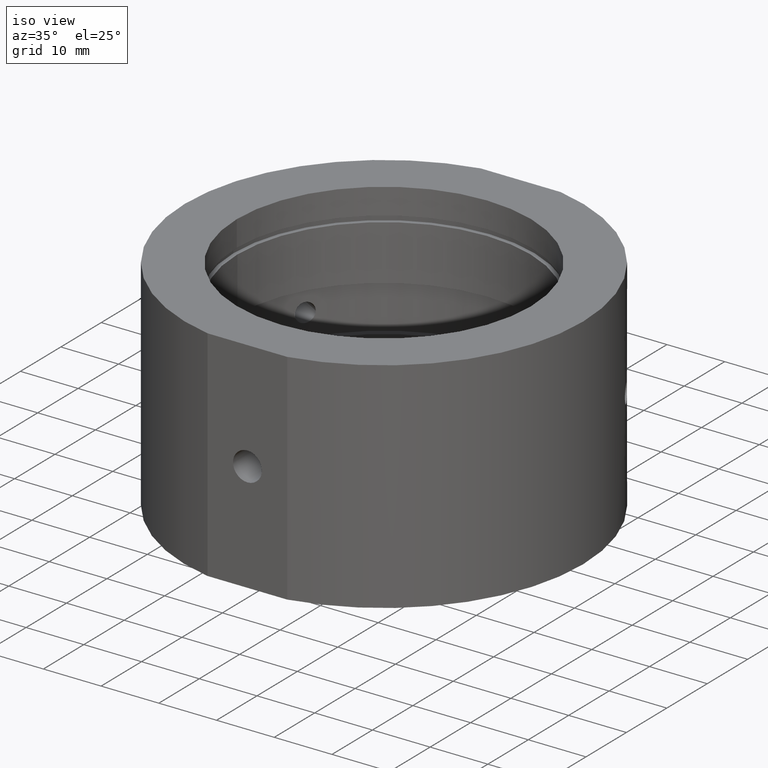
[diagram: clean part render]
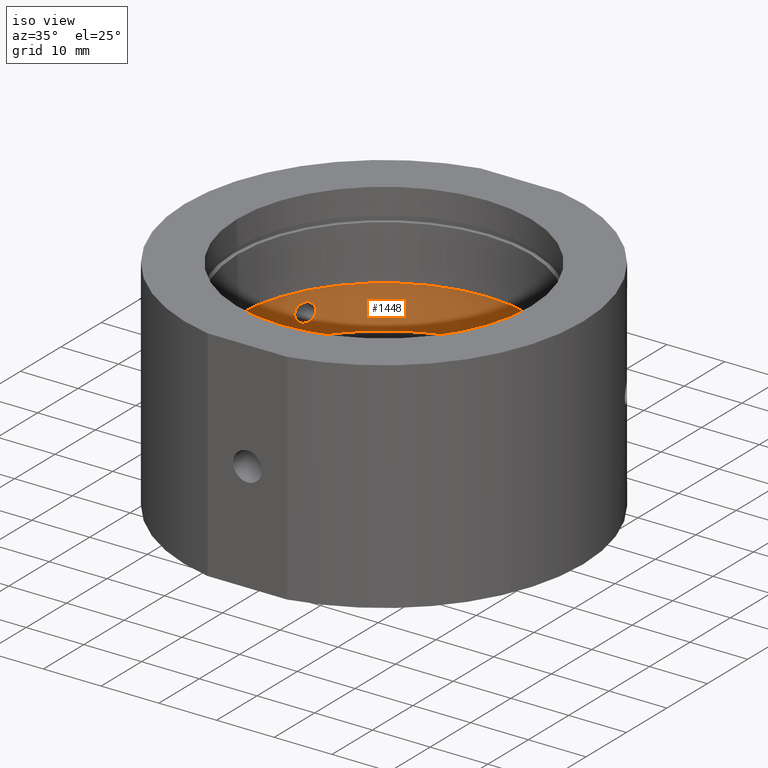
[diagram: same view with one face highlighted and labeled with its STEP entity id]
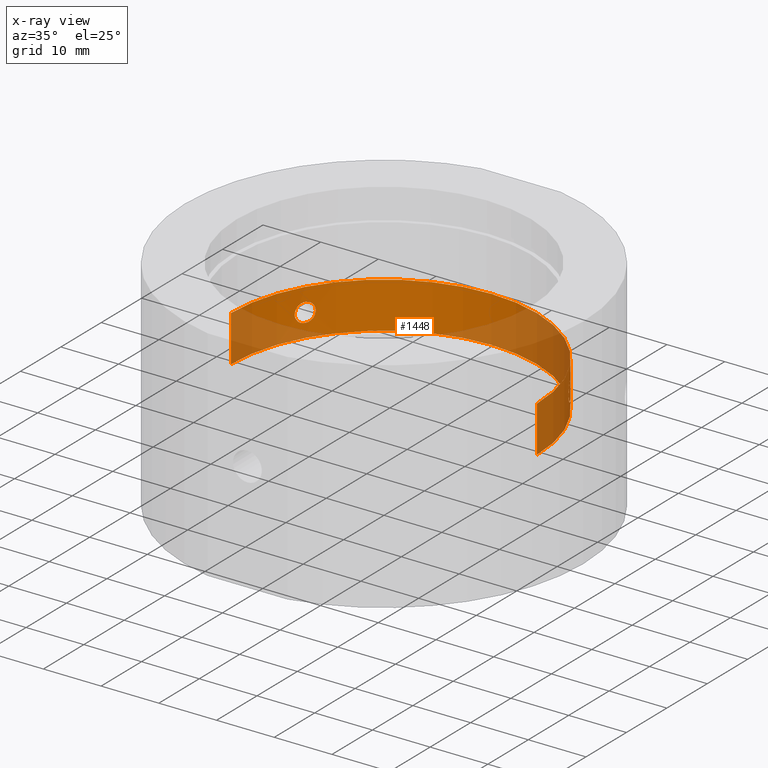
[diagram: x-ray of the same camera — body ghosted, the highlighted face saturated]
A machine part, iso view. The second image highlights one B-rep face of the part: STEP entity #1448.
The next image is the same camera in x-ray: the body ghosted, the highlighted face saturated — about 42% of this face is hidden behind the body in this view.
In plain terms, the highlighted cylindrical surface (partial cylindrical patch) has radius 26.5 mm, axis along (-0, -0, -1).
Its self-contained STEP definition (entity closure, byte-faithful):
#28 = CARTESIAN_POINT ( 'NONE',  ( -23.35139841118316500, 12.52877642802922200, -1.432732415614113200 ) ) ;
#34 = CARTESIAN_POINT ( 'NONE',  ( -23.16259475326376500, 12.87572309743568900, -1.607467900283008300 ) ) ;
#47 = CARTESIAN_POINT ( 'NONE',  ( -23.54583594359533500, 12.15933445046124300, 1.090854881088376900 ) ) ;
#55 = CARTESIAN_POINT ( 'NONE',  ( 23.47606128565331600, 12.29350779586357900, -1.242017584850813900 ) ) ;
#56 = CARTESIAN_POINT ( 'NONE',  ( -22.73283772159888400, 13.61907814751506200, 1.597159061045216900 ) ) ;
#62 = CARTESIAN_POINT ( 'NONE',  ( 23.05775346456262300, 13.06143664693666500, -1.639154046853646500 ) ) ;
#63 = CARTESIAN_POINT ( 'NONE',  ( -22.08014407289325100, 14.65323301255653900, 0.1077006230227178100 ) ) ;
#69 = DIRECTION ( 'NONE',  ( -1.000000000000000000, 0.0000000000000000000, 1.309225264888156600E-016 ) ) ;
#73 = CARTESIAN_POINT ( 'NONE',  ( 23.63696044207667100, 11.98127196628827700, -0.8295684704815773400 ) ) ;
#75 = VECTOR ( 'NONE', #269, 1000.000000000000000 ) ;
#91 = CYLINDRICAL_SURFACE ( 'NONE', #1072, 26.49999999999999300 ) ;
#143 = CARTESIAN_POINT ( 'NONE',  ( -22.26181086660921700, 14.37654084257253500, -1.013694917575982800 ) ) ;
#158 = CARTESIAN_POINT ( 'NONE',  ( 23.47508895288158100, 12.29537088971568600, 1.243978991921617300 ) ) ;
#165 = CARTESIAN_POINT ( 'NONE',  ( 23.35227968779728200, 12.52713189965998800, 1.431639342594719600 ) ) ;
#172 = CARTESIAN_POINT ( 'NONE',  ( -23.05761192653950100, 13.06303504127114200, 1.649922903012480700 ) ) ;
#176 = CIRCLE ( 'NONE', #1014, 26.49999999999999300 ) ;
#182 = CARTESIAN_POINT ( 'NONE',  ( 23.73014407289325700, 11.79534918006791400, 2.020667172427145400E-016 ) ) ;
#190 = ORIENTED_EDGE ( 'NONE', *, *, #805, .T. ) ;
#202 = B_SPLINE_CURVE_WITH_KNOTS ( 'NONE', 3,
 ( #948, #1168, #1174, #1284, #750, #953, #1160, #402, #736, #1064, #731, #398, #278, #836, #519, #1189, #289, #409, #165, #1278, #158, #1180, #1068, #1051, #623, #530, #942, #1046, #527, #182 ),
 .UNSPECIFIED., .F., .F.,
 ( 4, 2, 2, 2, 2, 2, 2, 2, 2, 2, 2, 2, 2, 2, 4 ),
 ( 3.873116959777175400E-019, 0.0003224937488851738500, 0.0006449874977703473700, 0.0009674812466555208400, 0.001289974995540694300, 0.001934962493311033700, 0.002579949991081373400, 0.002902443739966543500, 0.003224937488851713200, 0.003547431237736883300, 0.003869924986622053000, 0.004192418735507222700, 0.004514912484392392800, 0.004837406233277562900, 0.005159899982162733000 ),
 .UNSPECIFIED. ) ;
#210 = EDGE_CURVE ( 'NONE', #1439, #1283, #202, .T. ) ;
#214 = B_SPLINE_CURVE_WITH_KNOTS ( 'NONE', 3,
 ( #906, #244, #1272, #616, #143, #828, #725, #712, #914, #705, #1381, #718, #364, #250, #34, #1385, #28, #806, #604, #1370, #1133, #1154, #371, #273 ),
 .UNSPECIFIED., .F., .F.,
 ( 4, 2, 2, 2, 2, 2, 2, 2, 2, 2, 2, 4 ),
 ( 0.005159899982162735600, 0.005804739698417773900, 0.006449579414672812100, 0.006771999272800330000, 0.007094419130927846900, 0.007416838989055364800, 0.007739258847182881700, 0.008384098563437907000, 0.008706518421565424800, 0.009028938279692940900, 0.009673777995947974900, 0.01031861771220300900 ),
 .UNSPECIFIED. ) ;
#244 = CARTESIAN_POINT ( 'NONE',  ( -22.08014407289324800, 14.65323301255653400, -0.2153518926507573000 ) ) ;
#245 = CARTESIAN_POINT ( 'NONE',  ( -22.08014407289324800, 14.65323301255653400, 2.020667172435034000E-016 ) ) ;
#250 = CARTESIAN_POINT ( 'NONE',  ( -23.05787869208662500, 13.06260460685934200, -1.650176797725128700 ) ) ;
#269 = DIRECTION ( 'NONE',  ( -1.224646799147350500E-016, -0.0000000000000000000, -1.000000000000000000 ) ) ;
#273 = CARTESIAN_POINT ( 'NONE',  ( -23.73014407289325300, 11.79534918006790400, -1.135975920624923700E-017 ) ) ;
#278 = CARTESIAN_POINT ( 'NONE',  ( 22.84172615953674100, 13.43696015835090300, 1.649922903012480000 ) ) ;
#279 = CARTESIAN_POINT ( 'NONE',  ( -23.65513358560170700, 11.94514029280052500, 0.7318373474446678900 ) ) ;
#283 = EDGE_CURVE ( 'NONE', #970, #563, #176, .T. ) ;
#289 = CARTESIAN_POINT ( 'NONE',  ( 23.21069027907539700, 12.78764415457972700, 1.565986155163603600 ) ) ;
#292 = CARTESIAN_POINT ( 'NONE',  ( -23.70662996333397400, 11.84255618835795900, 0.4272032370747663200 ) ) ;
#302 = DIRECTION ( 'NONE',  ( -1.224646799147350500E-016, -0.0000000000000000000, -1.000000000000000000 ) ) ;
#328 = LINE ( 'NONE', #1268, #75 ) ;
#345 = EDGE_CURVE ( 'NONE', #659, #563, #869, .T. ) ;
#364 = CARTESIAN_POINT ( 'NONE',  ( -22.89456247127683900, 13.34544347229918800, -1.649910780175099400 ) ) ;
#371 = CARTESIAN_POINT ( 'NONE',  ( -23.73014407289326000, 11.79534918006790500, -0.2180454663069551200 ) ) ;
#386 = CARTESIAN_POINT ( 'NONE',  ( 22.26251392646611300, 14.37545578161552700, -1.015413393939633500 ) ) ;
#392 = CARTESIAN_POINT ( 'NONE',  ( 23.73014407289325700, 11.79534918006791400, 2.020667172427145400E-016 ) ) ;
#394 = CARTESIAN_POINT ( 'NONE',  ( -22.67976983195918800, 13.70722534376215800, 1.565986155163604100 ) ) ;
#397 = CARTESIAN_POINT ( 'NONE',  ( -26.49999999999998900, 0.0000000000000000000, -3.999999999999996400 ) ) ;
#398 = CARTESIAN_POINT ( 'NONE',  ( 22.73071288378095600, 13.62366110087663700, 1.606592446830117600 ) ) ;
#400 = CARTESIAN_POINT ( 'NONE',  ( -23.73014407289326400, 11.79534918006790900, 0.1090477185014678100 ) ) ;
#402 = CARTESIAN_POINT ( 'NONE',  ( 22.26541622400003500, 14.37027612070883500, 1.005959331714499700 ) ) ;
#403 = CARTESIAN_POINT ( 'NONE',  ( -23.57773229193065100, 12.09727801546402600, 1.005959331714501000 ) ) ;
#409 = CARTESIAN_POINT ( 'NONE',  ( 23.30647296158392500, 12.61222836560926900, 1.483316624237936800 ) ) ;
#410 = EDGE_CURVE ( 'NONE', #1433, #1310, #214, .T. ) ;
#411 = CARTESIAN_POINT ( 'NONE',  ( 22.43092357441076200, 14.11069502683310600, -1.313227890595692700 ) ) ;
#425 = CARTESIAN_POINT ( 'NONE',  ( 26.49999999999999300, 3.245314017740485000E-015, -31.93906810035839800 ) ) ;
#426 = B_SPLINE_CURVE_WITH_KNOTS ( 'NONE', 3,
 ( #625, #1169, #726, #73, #1389, #55, #928, #1286, #854, #738, #1059, #62, #617, #522, #745, #636, #851, #411, #1183, #386, #647, #1306, #1069, #758 ),
 .UNSPECIFIED., .F., .F.,
 ( 4, 2, 2, 2, 2, 2, 2, 2, 2, 2, 2, 4 ),
 ( 0.005159899982162733000, 0.005804739698417770400, 0.006449579414672806900, 0.006771999272800326500, 0.007094419130927845200, 0.007416838989055363900, 0.007739258847182882600, 0.008384098563437910500, 0.008706518421565424800, 0.009028938279692939200, 0.009673777995947971400, 0.01031861771220300400 ),
 .UNSPECIFIED. ) ;
#438 = ORIENTED_EDGE ( 'NONE', *, *, #1327, .T. ) ;
#450 = CARTESIAN_POINT ( 'NONE',  ( 26.49999999999999600, 3.245314017740485000E-015, 3.999999999999993300 ) ) ;
#468 = DIRECTION ( 'NONE',  ( -1.000000000000000000, 0.0000000000000000000, 0.0000000000000000000 ) ) ;
#482 = ORIENTED_EDGE ( 'NONE', *, *, #949, .F. ) ;
#503 = CARTESIAN_POINT ( 'NONE',  ( -23.69242317840550900, 11.87100692876142600, 0.5320135984829578200 ) ) ;
#507 = CARTESIAN_POINT ( 'NONE',  ( -22.52495430556247100, 13.96010149608200600, 1.431639342594719800 ) ) ;
#514 = CARTESIAN_POINT ( 'NONE',  ( -22.10946025722504500, 14.60897716588689500, 0.4285652912980805200 ) ) ;
#515 = ORIENTED_EDGE ( 'NONE', *, *, #210, .T. ) ;
#519 = CARTESIAN_POINT ( 'NONE',  ( 23.05729099181073500, 13.06225602963113800, 1.639302869596791700 ) ) ;
#522 = CARTESIAN_POINT ( 'NONE',  ( 22.84148677517501700, 13.43740640129746700, -1.650176797725129400 ) ) ;
#523 = CARTESIAN_POINT ( 'NONE',  ( -22.12669488235694400, 14.58290416261393900, 0.5314342899608207600 ) ) ;
#527 = CARTESIAN_POINT ( 'NONE',  ( 23.73014407289325000, 11.79534918006791200, 0.1077006230227172100 ) ) ;
#530 = CARTESIAN_POINT ( 'NONE',  ( 23.69251290695586900, 11.87082778860150400, 0.5314342899608194300 ) ) ;
#543 = CARTESIAN_POINT ( 'NONE',  ( 3.421549032026375300E-015, 0.0000000000000000000, -4.000000000000000000 ) ) ;
#563 = VERTEX_POINT ( 'NONE', #996 ) ;
#584 = CARTESIAN_POINT ( 'NONE',  ( 0.0000000000000000000, 0.0000000000000000000, -31.93906810035839800 ) ) ;
#604 = CARTESIAN_POINT ( 'NONE',  ( -23.47522069572985600, 12.29511395232253800, -1.243615211085981500 ) ) ;
#616 = CARTESIAN_POINT ( 'NONE',  ( -22.19456611349417200, 14.47957222794231500, -0.8295684704815775600 ) ) ;
#617 = CARTESIAN_POINT ( 'NONE',  ( 23.00477430741860400, 13.15455097250620000, -1.649910780175099000 ) ) ;
#619 = CARTESIAN_POINT ( 'NONE',  ( -22.26566509040219400, 14.36988995336608900, 1.006520465042879200 ) ) ;
#623 = CARTESIAN_POINT ( 'NONE',  ( 23.65523837441242000, 11.94493271988714200, 0.7313737833723542600 ) ) ;
#625 = CARTESIAN_POINT ( 'NONE',  ( 23.73014407289325700, 11.79534918006791400, 2.020667172427145400E-016 ) ) ;
#630 = DIRECTION ( 'NONE',  ( -1.224646799147350500E-016, -0.0000000000000000000, -1.000000000000000000 ) ) ;
#633 = EDGE_LOOP ( 'NONE', ( #771, #482, #804, #1058 ) ) ;
#636 = CARTESIAN_POINT ( 'NONE',  ( 22.57578034668964800, 13.87782951273221400, -1.483357019583652700 ) ) ;
#637 = CARTESIAN_POINT ( 'NONE',  ( 4.401266471344255700E-015, 0.0000000000000000000, 3.999999999999996400 ) ) ;
#647 = CARTESIAN_POINT ( 'NONE',  ( 22.19519541159433700, 14.47860913136916000, -0.8315601166443732400 ) ) ;
#659 = VERTEX_POINT ( 'NONE', #450 ) ;
#667 = EDGE_CURVE ( 'NONE', #685, #970, #328, .T. ) ;
#668 = B_SPLINE_CURVE_WITH_KNOTS ( 'NONE', 3,
 ( #937, #400, #728, #292, #503, #279, #1049, #403, #47, #1055, #1273, #1170, #172, #834, #1397, #56, #394, #1390, #507, #847, #1178, #951, #619, #1158, #1163, #523, #514, #839, #63, #945 ),
 .UNSPECIFIED., .F., .F.,
 ( 4, 2, 2, 2, 2, 2, 2, 2, 2, 2, 2, 2, 2, 2, 4 ),
 ( 2.452218381647094000E-019, 0.0003224937488851720600, 0.0006449874977703437900, 0.0009674812466555154200, 0.001289974995540687400, 0.001934962493311031500, 0.002579949991081375600, 0.002902443739966545700, 0.003224937488851715800, 0.003547431237736885900, 0.003869924986622055600, 0.004192418735507225300, 0.004514912484392395400, 0.004837406233277565500, 0.005159899982162735600 ),
 .UNSPECIFIED. ) ;
#677 = AXIS2_PLACEMENT_3D ( 'NONE', #637, #630, #69 ) ;
#685 = VERTEX_POINT ( 'NONE', #903 ) ;
#695 = CARTESIAN_POINT ( 'NONE',  ( 22.08014407289325100, 14.65323301255654400, 2.396326153925488600E-016 ) ) ;
#705 = CARTESIAN_POINT ( 'NONE',  ( -22.67861960326777300, 13.70912737176482400, -1.565225519695951300 ) ) ;
#712 = CARTESIAN_POINT ( 'NONE',  ( -22.52491568547260300, 13.96016563751796200, -1.431623242074242100 ) ) ;
#718 = CARTESIAN_POINT ( 'NONE',  ( -22.84041267844937200, 13.43788193104175500, -1.639154046853646500 ) ) ;
#725 = CARTESIAN_POINT ( 'NONE',  ( -22.42986220867273400, 14.11238224271655800, -1.311712561979966100 ) ) ;
#726 = CARTESIAN_POINT ( 'NONE',  ( 23.71094271443393700, 11.83418659914126500, -0.4324246359971258800 ) ) ;
#728 = CARTESIAN_POINT ( 'NONE',  ( -23.72537572262025000, 11.80495608265281100, 0.2162676873792895900 ) ) ;
#731 = CARTESIAN_POINT ( 'NONE',  ( 22.52394914348536000, 13.96284945768985600, 1.442030783619155700 ) ) ;
#736 = CARTESIAN_POINT ( 'NONE',  ( 22.30321049900827600, 14.31162485526390200, 1.090854881088376900 ) ) ;
#738 = CARTESIAN_POINT ( 'NONE',  ( 23.21176236929870400, 12.78569701331146300, -1.565225519695951700 ) ) ;
#745 = CARTESIAN_POINT ( 'NONE',  ( 22.73200067110512600, 13.62153392517294600, -1.607467900283009000 ) ) ;
#750 = CARTESIAN_POINT ( 'NONE',  ( 22.12680515801110200, 14.58273688532992700, 0.5320135984829578200 ) ) ;
#758 = CARTESIAN_POINT ( 'NONE',  ( 22.08014407289325100, 14.65323301255654400, 2.396326153925488600E-016 ) ) ;
#763 = DIRECTION ( 'NONE',  ( -1.224646799147350500E-016, -0.0000000000000000000, -1.000000000000000000 ) ) ;
#771 = ORIENTED_EDGE ( 'NONE', *, *, #345, .F. ) ;
#804 = ORIENTED_EDGE ( 'NONE', *, *, #667, .T. ) ;
#805 = EDGE_CURVE ( 'NONE', #1310, #1433, #668, .T. ) ;
#806 = CARTESIAN_POINT ( 'NONE',  ( -23.43568214549745900, 12.37040213237062300, -1.313227890595690900 ) ) ;
#828 = CARTESIAN_POINT ( 'NONE',  ( -22.38452069566641000, 14.18411155624455600, -1.242017584850814800 ) ) ;
#834 = CARTESIAN_POINT ( 'NONE',  ( -22.89614636858032500, 13.34271597275603800, 1.650038390237899400 ) ) ;
#836 = CARTESIAN_POINT ( 'NONE',  ( 23.00320417217716700, 13.15728641757958600, 1.650038390237900100 ) ) ;
#839 = CARTESIAN_POINT ( 'NONE',  ( -22.08612916099174200, 14.64422566690396000, 0.2170867892633909200 ) ) ;
#847 = CARTESIAN_POINT ( 'NONE',  ( -22.43020451450802400, 14.11183636830914200, 1.312176871509158200 ) ) ;
#851 = CARTESIAN_POINT ( 'NONE',  ( 22.52593787060042300, 13.95851602396180300, -1.432732415614114600 ) ) ;
#854 = CARTESIAN_POINT ( 'NONE',  ( 23.30740716125861300, 12.61050085541030300, -1.482342151618422800 ) ) ;
#861 = FACE_BOUND ( 'NONE', #1221, .T. ) ;
#869 = LINE ( 'NONE', #425, #1141 ) ;
#903 = CARTESIAN_POINT ( 'NONE',  ( -26.49999999999998900, 0.0000000000000000000, 4.000000000000000000 ) ) ;
#906 = CARTESIAN_POINT ( 'NONE',  ( -22.08014407289324800, 14.65323301255653400, 2.020667172435034000E-016 ) ) ;
#914 = CARTESIAN_POINT ( 'NONE',  ( -22.57471767585989000, 13.87955627029236200, -1.482342151618423200 ) ) ;
#928 = CARTESIAN_POINT ( 'NONE',  ( 23.43661263444521100, 12.36863935473706600, -1.311712561979966100 ) ) ;
#937 = CARTESIAN_POINT ( 'NONE',  ( -23.73014407289325300, 11.79534918006790400, -1.135975920624923700E-017 ) ) ;
#942 = CARTESIAN_POINT ( 'NONE',  ( 23.70647547757725300, 11.84286566377609700, 0.4285652912980805200 ) ) ;
#945 = CARTESIAN_POINT ( 'NONE',  ( -22.08014407289324800, 14.65323301255653400, 2.020667172435034000E-016 ) ) ;
#948 = CARTESIAN_POINT ( 'NONE',  ( 22.08014407289325100, 14.65323301255654400, 2.396326153925488600E-016 ) ) ;
#949 = EDGE_CURVE ( 'NONE', #685, #659, #977, .T. ) ;
#951 = CARTESIAN_POINT ( 'NONE',  ( -22.30272881661691600, 14.31238044469944300, 1.089964078277952900 ) ) ;
#953 = CARTESIAN_POINT ( 'NONE',  ( 22.17236173813507700, 14.51337646864550200, 0.7318373474446680000 ) ) ;
#970 = VERTEX_POINT ( 'NONE', #397 ) ;
#974 = FACE_OUTER_BOUND ( 'NONE', #633, .T. ) ;
#977 = CIRCLE ( 'NONE', #677, 26.49999999999999300 ) ;
#996 = CARTESIAN_POINT ( 'NONE',  ( 26.49999999999999600, 3.245314017740485000E-015, -4.000000000000003600 ) ) ;
#1014 = AXIS2_PLACEMENT_3D ( 'NONE', #543, #763, #1420 ) ;
#1032 = DIRECTION ( 'NONE',  ( -1.224646799147350500E-016, -0.0000000000000000000, -1.000000000000000000 ) ) ;
#1046 = CARTESIAN_POINT ( 'NONE',  ( 23.72533602678669600, 11.80503609123138300, 0.2170867892633909800 ) ) ;
#1049 = CARTESIAN_POINT ( 'NONE',  ( -23.63223580317842500, 11.99045563589433700, 0.8266064267799921900 ) ) ;
#1051 = CARTESIAN_POINT ( 'NONE',  ( 23.63190509103128200, 11.99110674451265300, 0.8278233031486641500 ) ) ;
#1053 = CARTESIAN_POINT ( 'NONE',  ( -23.73014407289325300, 11.79534918006790400, -1.135975920624923700E-017 ) ) ;
#1055 = CARTESIAN_POINT ( 'NONE',  ( -23.44037845750960300, 12.36211454453651200, 1.319112375348941100 ) ) ;
#1058 = ORIENTED_EDGE ( 'NONE', *, *, #283, .T. ) ;
#1059 = CARTESIAN_POINT ( 'NONE',  ( 23.16098205381151600, 12.87750101601669300, -1.597080664446328000 ) ) ;
#1064 = CARTESIAN_POINT ( 'NONE',  ( 22.42609446881639100, 14.11890594625677900, 1.319112375348941800 ) ) ;
#1068 = CARTESIAN_POINT ( 'NONE',  ( 23.57752229440281500, 12.09768662376182400, 1.006520465042878500 ) ) ;
#1069 = CARTESIAN_POINT ( 'NONE',  ( 22.08014407289324400, 14.65323301255653900, -0.2180454663069560900 ) ) ;
#1072 = AXIS2_PLACEMENT_3D ( 'NONE', #584, #1032, #468 ) ;
#1097 = ORIENTED_EDGE ( 'NONE', *, *, #410, .T. ) ;
#1133 = CARTESIAN_POINT ( 'NONE',  ( -23.63644102502807700, 11.98229850271614300, -0.8315601166443717900 ) ) ;
#1141 = VECTOR ( 'NONE', #302, 1000.000000000000000 ) ;
#1145 = FACE_BOUND ( 'NONE', #1417, .T. ) ;
#1154 = CARTESIAN_POINT ( 'NONE',  ( -23.71067269066712400, 11.83472949812865800, -0.4346623414733966600 ) ) ;
#1158 = CARTESIAN_POINT ( 'NONE',  ( -22.20055560575438100, 14.47027677639978000, 0.8278233031486655900 ) ) ;
#1160 = CARTESIAN_POINT ( 'NONE',  ( 22.20015708522387900, 14.47088873582971000, 0.8266064267799909700 ) ) ;
#1163 = CARTESIAN_POINT ( 'NONE',  ( -22.17223436912427900, 14.51357100487429900, 0.7313737833723557000 ) ) ;
#1168 = CARTESIAN_POINT ( 'NONE',  ( 22.08014407289325100, 14.65323301255654400, 0.1090477185014678000 ) ) ;
#1169 = CARTESIAN_POINT ( 'NONE',  ( 23.73014407289325700, 11.79534918006791800, -0.2153518926507572200 ) ) ;
#1170 = CARTESIAN_POINT ( 'NONE',  ( -23.16379304779939100, 12.87354425304644300, 1.606592446830118900 ) ) ;
#1174 = CARTESIAN_POINT ( 'NONE',  ( 22.08607971944695000, 14.64430004879351800, 0.2162676873792898100 ) ) ;
#1178 = CARTESIAN_POINT ( 'NONE',  ( -22.38564801588610500, 14.18233794443724900, 1.243978991921616900 ) ) ;
#1180 = CARTESIAN_POINT ( 'NONE',  ( 23.54624946204569400, 12.15853950655600700, 1.089964078277952900 ) ) ;
#1183 = CARTESIAN_POINT ( 'NONE',  ( 22.38549137300061200, 14.18258050578720200, -1.243615211085983100 ) ) ;
#1189 = CARTESIAN_POINT ( 'NONE',  ( 23.16088651267288900, 12.87767589325648600, 1.597159061045217500 ) ) ;
#1221 = EDGE_LOOP ( 'NONE', ( #190, #1097 ) ) ;
#1268 = CARTESIAN_POINT ( 'NONE',  ( -26.49999999999999300, 0.0000000000000000000, -31.93906810035839800 ) ) ;
#1272 = CARTESIAN_POINT ( 'NONE',  ( -22.10417758519854600, 14.61718543880691700, -0.4324246359971254900 ) ) ;
#1273 = CARTESIAN_POINT ( 'NONE',  ( -23.35415691131974100, 12.52488742296235500, 1.442030783619155500 ) ) ;
#1278 = CARTESIAN_POINT ( 'NONE',  ( 23.43631104625874800, 12.36920873749000200, 1.312176871509157700 ) ) ;
#1283 = VERTEX_POINT ( 'NONE', #392 ) ;
#1284 = CARTESIAN_POINT ( 'NONE',  ( 22.10926948652946000, 14.60926569218580800, 0.4272032370747667100 ) ) ;
#1286 = CARTESIAN_POINT ( 'NONE',  ( 23.35231592586531900, 12.52706638296308500, -1.431623242074241400 ) ) ;
#1306 = CARTESIAN_POINT ( 'NONE',  ( 22.10451273762990400, 14.61668014187153600, -0.4346623414733972200 ) ) ;
#1310 = VERTEX_POINT ( 'NONE', #1053 ) ;
#1327 = EDGE_CURVE ( 'NONE', #1283, #1439, #426, .T. ) ;
#1370 = CARTESIAN_POINT ( 'NONE',  ( -23.58076686109187000, 12.09217472161696200, -1.015413393939632800 ) ) ;
#1381 = CARTESIAN_POINT ( 'NONE',  ( -22.73273404403600000, 13.61924832718811400, -1.597080664446328000 ) ) ;
#1385 = CARTESIAN_POINT ( 'NONE',  ( -23.30644308076022100, 12.61228453412480700, -1.483357019583652100 ) ) ;
#1389 = CARTESIAN_POINT ( 'NONE',  ( 23.58135502151686000, 12.09102332344200900, -1.013694917575982200 ) ) ;
#1390 = CARTESIAN_POINT ( 'NONE',  ( -22.57574664374015300, 13.87788347454240400, 1.483316624237937900 ) ) ;
#1397 = CARTESIAN_POINT ( 'NONE',  ( -22.84089104830226100, 13.43707172654283600, 1.639302869596791300 ) ) ;
#1417 = EDGE_LOOP ( 'NONE', ( #515, #438 ) ) ;
#1420 = DIRECTION ( 'NONE',  ( -1.000000000000000000, 0.0000000000000000000, 1.309225264888156600E-016 ) ) ;
#1433 = VERTEX_POINT ( 'NONE', #245 ) ;
#1439 = VERTEX_POINT ( 'NONE', #695 ) ;
#1448 = ADVANCED_FACE ( 'NONE', ( #974, #861, #1145 ), #91, .F. ) ;